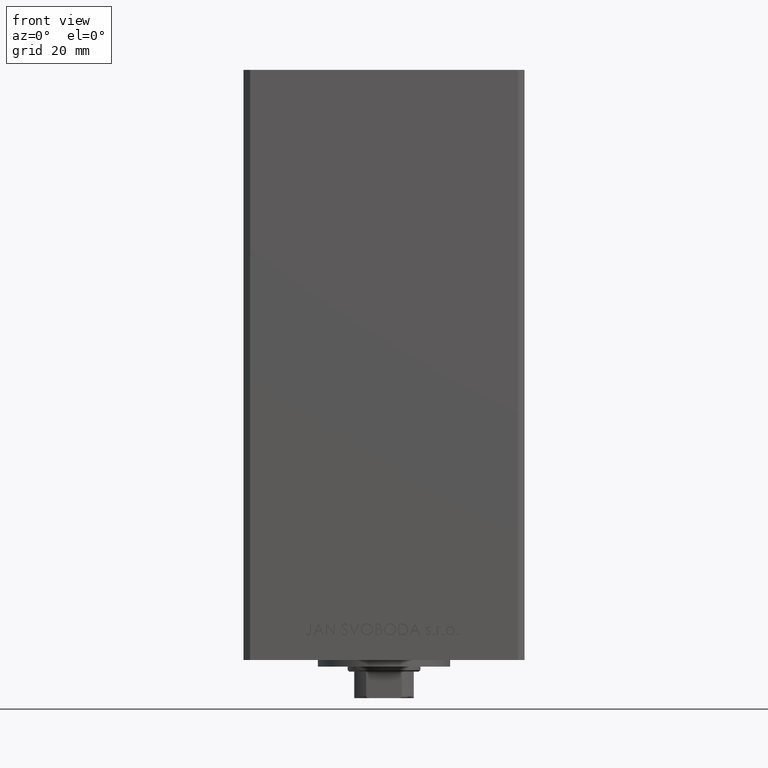
[diagram: clean part render]
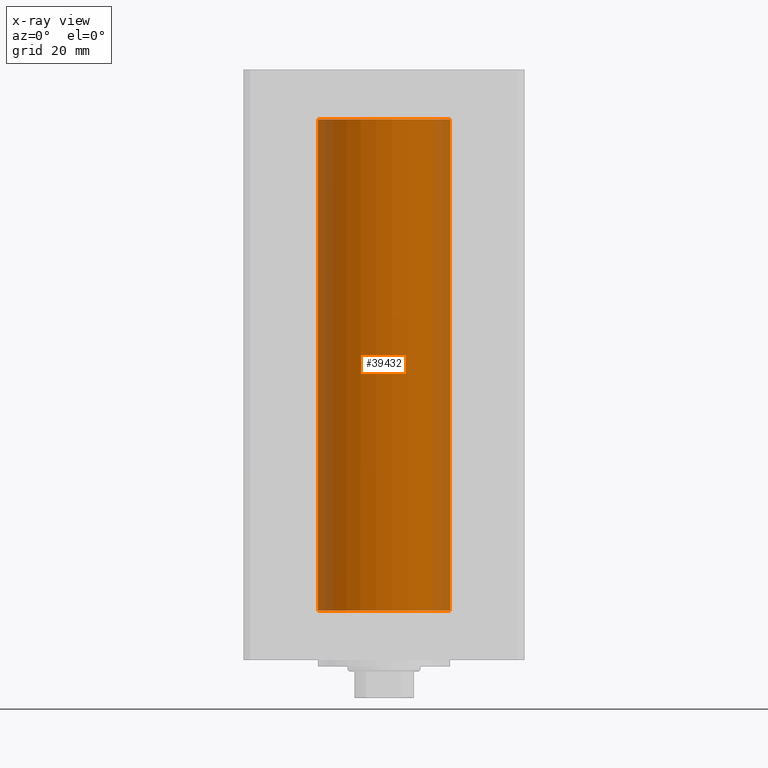
[diagram: x-ray — body ghosted, one internal face saturated and labeled with its STEP entity id]
A machine part, front view, then the same camera in x-ray: the body is ghosted and one INTERNAL B-rep face — a face not visible from any outside direction — is saturated and labeled: STEP entity #39432.
In plain terms, the highlighted cylindrical surface (partial cylindrical patch) has radius 20 mm, axis along (-0, -0, -1).
Its self-contained STEP definition (entity closure, byte-faithful):
#522 = AXIS2_PLACEMENT_3D ( 'NONE', #10328, #24938, #6369 ) ;
#897 = AXIS2_PLACEMENT_3D ( 'NONE', #2064, #20857, #13679 ) ;
#1535 = VERTEX_POINT ( 'NONE', #36879 ) ;
#2064 = CARTESIAN_POINT ( 'NONE',  ( 0.000000000000000000, 0.000000000000000000, 148.5000000000000000 ) ) ;
#5066 = ORIENTED_EDGE ( 'NONE', *, *, #38764, .F. ) ;
#6125 = DIRECTION ( 'NONE',  ( -0.000000000000000000, -0.000000000000000000, -1.000000000000000000 ) ) ;
#6369 = DIRECTION ( 'NONE',  ( 1.000000000000000000, 0.000000000000000000, 0.000000000000000000 ) ) ;
#6756 = CYLINDRICAL_SURFACE ( 'NONE', #897, 20.00000000000000000 ) ;
#7445 = VECTOR ( 'NONE', #6125, 1000.000000000000000 ) ;
#7623 = CIRCLE ( 'NONE', #522, 20.00000000000000000 ) ;
#10328 = CARTESIAN_POINT ( 'NONE',  ( 0.000000000000000000, 0.000000000000000000, 0.000000000000000000 ) ) ;
#11428 = EDGE_CURVE ( 'NONE', #45765, #23511, #25421, .T. ) ;
#12572 = CARTESIAN_POINT ( 'NONE',  ( -20.00000000000000000, 0.000000000000000000, 148.5000000000000000 ) ) ;
#13679 = DIRECTION ( 'NONE',  ( -1.000000000000000000, 0.000000000000000000, 0.000000000000000000 ) ) ;
#16391 = EDGE_CURVE ( 'NONE', #30559, #23511, #7623, .T. ) ;
#20857 = DIRECTION ( 'NONE',  ( -0.000000000000000000, -0.000000000000000000, -1.000000000000000000 ) ) ;
#23511 = VERTEX_POINT ( 'NONE', #25224 ) ;
#24275 = ORIENTED_EDGE ( 'NONE', *, *, #16391, .F. ) ;
#24938 = DIRECTION ( 'NONE',  ( -0.000000000000000000, 0.000000000000000000, 1.000000000000000000 ) ) ;
#24956 = EDGE_LOOP ( 'NONE', ( #27818, #38707, #24275, #5066 ) ) ;
#25224 = CARTESIAN_POINT ( 'NONE',  ( 20.00000000000000000, 2.449293598294706513E-15, 0.000000000000000000 ) ) ;
#25421 = LINE ( 'NONE', #28658, #7445 ) ;
#26164 = CARTESIAN_POINT ( 'NONE',  ( 20.00000000000000000, 2.449293598294706513E-15, 148.5000000000000000 ) ) ;
#27818 = ORIENTED_EDGE ( 'NONE', *, *, #46784, .T. ) ;
#28658 = CARTESIAN_POINT ( 'NONE',  ( 20.00000000000000000, 2.449293598294706513E-15, 148.5000000000000000 ) ) ;
#30559 = VERTEX_POINT ( 'NONE', #37153 ) ;
#33111 = DIRECTION ( 'NONE',  ( -0.000000000000000000, 0.000000000000000000, 1.000000000000000000 ) ) ;
#33351 = CARTESIAN_POINT ( 'NONE',  ( 0.000000000000000000, 0.000000000000000000, 148.5000000000000000 ) ) ;
#36879 = CARTESIAN_POINT ( 'NONE',  ( -20.00000000000000000, 0.000000000000000000, 148.5000000000000000 ) ) ;
#37153 = CARTESIAN_POINT ( 'NONE',  ( -20.00000000000000000, 0.000000000000000000, 0.000000000000000000 ) ) ;
#38707 = ORIENTED_EDGE ( 'NONE', *, *, #11428, .T. ) ;
#38764 = EDGE_CURVE ( 'NONE', #1535, #30559, #46470, .T. ) ;
#39432 = ADVANCED_FACE ( 'NONE', ( #43851 ), #6756, .F. ) ;
#40530 = DIRECTION ( 'NONE',  ( 1.000000000000000000, 0.000000000000000000, 0.000000000000000000 ) ) ;
#42774 = DIRECTION ( 'NONE',  ( -0.000000000000000000, -0.000000000000000000, -1.000000000000000000 ) ) ;
#43851 = FACE_OUTER_BOUND ( 'NONE', #24956, .T. ) ;
#44593 = CIRCLE ( 'NONE', #46941, 20.00000000000000000 ) ;
#45765 = VERTEX_POINT ( 'NONE', #26164 ) ;
#46470 = LINE ( 'NONE', #12572, #47516 ) ;
#46784 = EDGE_CURVE ( 'NONE', #1535, #45765, #44593, .T. ) ;
#46941 = AXIS2_PLACEMENT_3D ( 'NONE', #33351, #33111, #40530 ) ;
#47516 = VECTOR ( 'NONE', #42774, 1000.000000000000000 ) ;